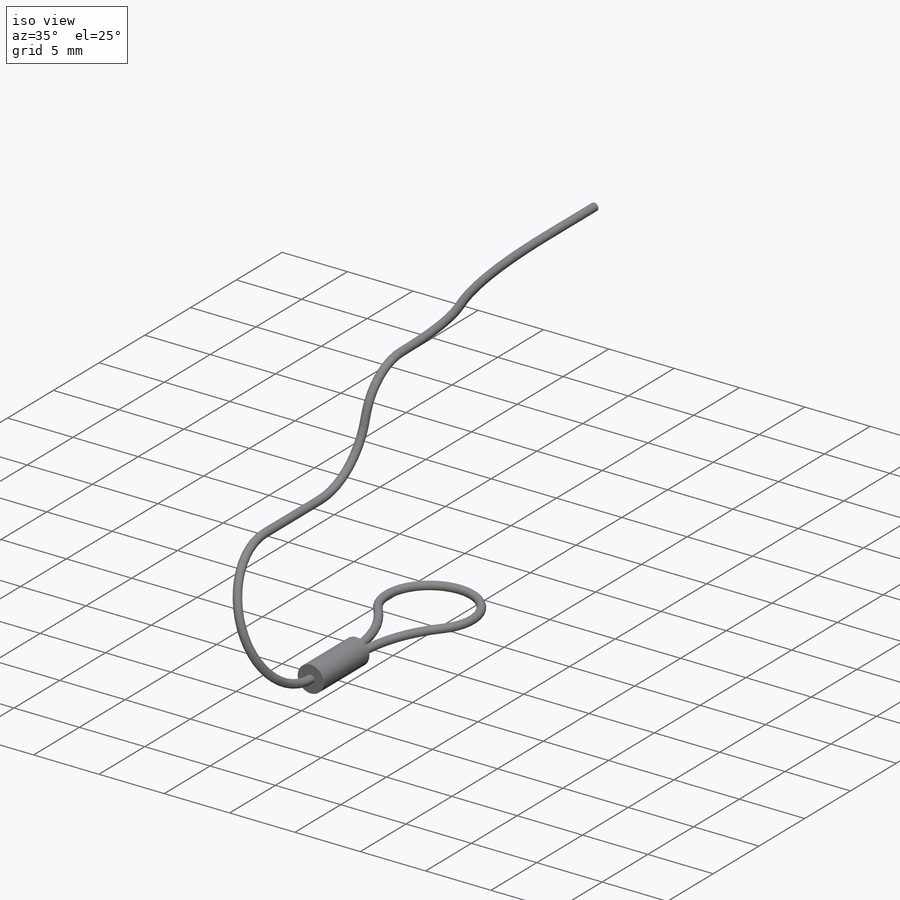
[diagram: iso view]
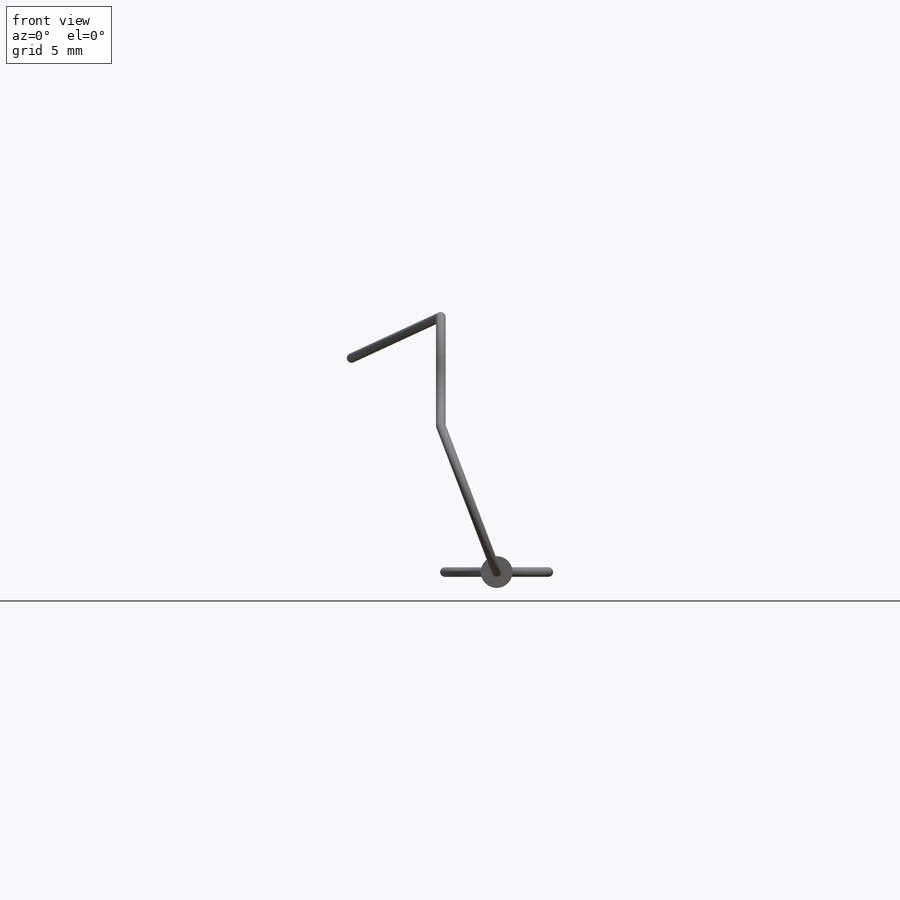
[diagram: front view]
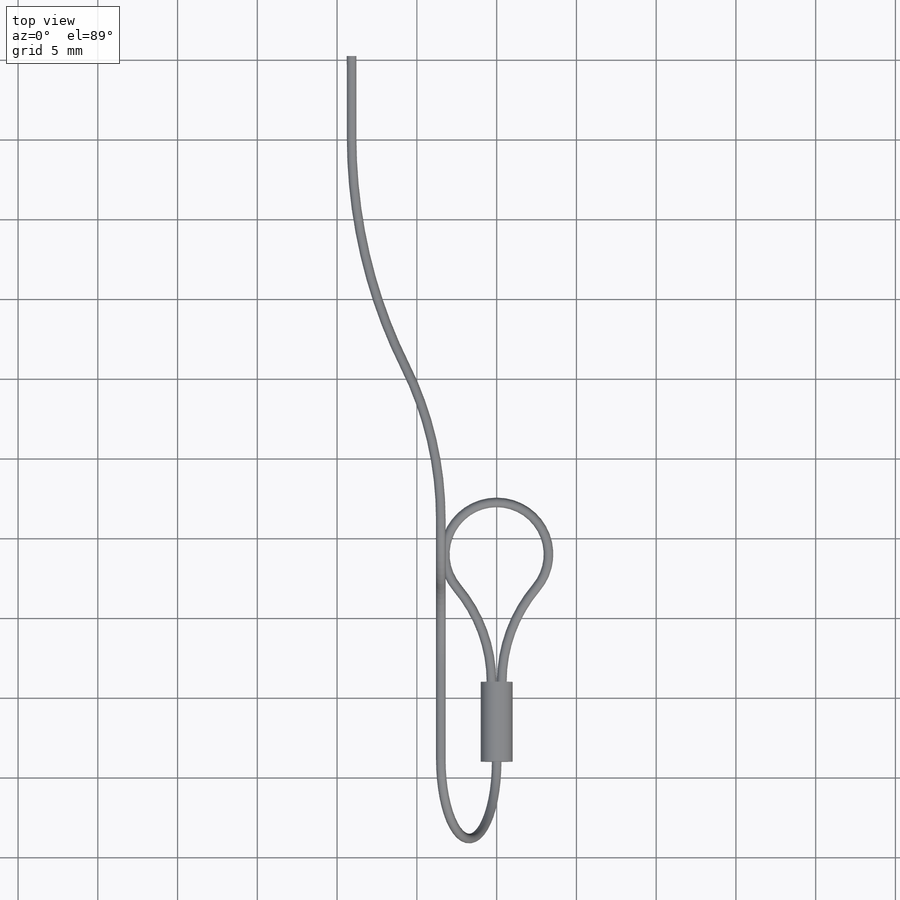
[diagram: top view]
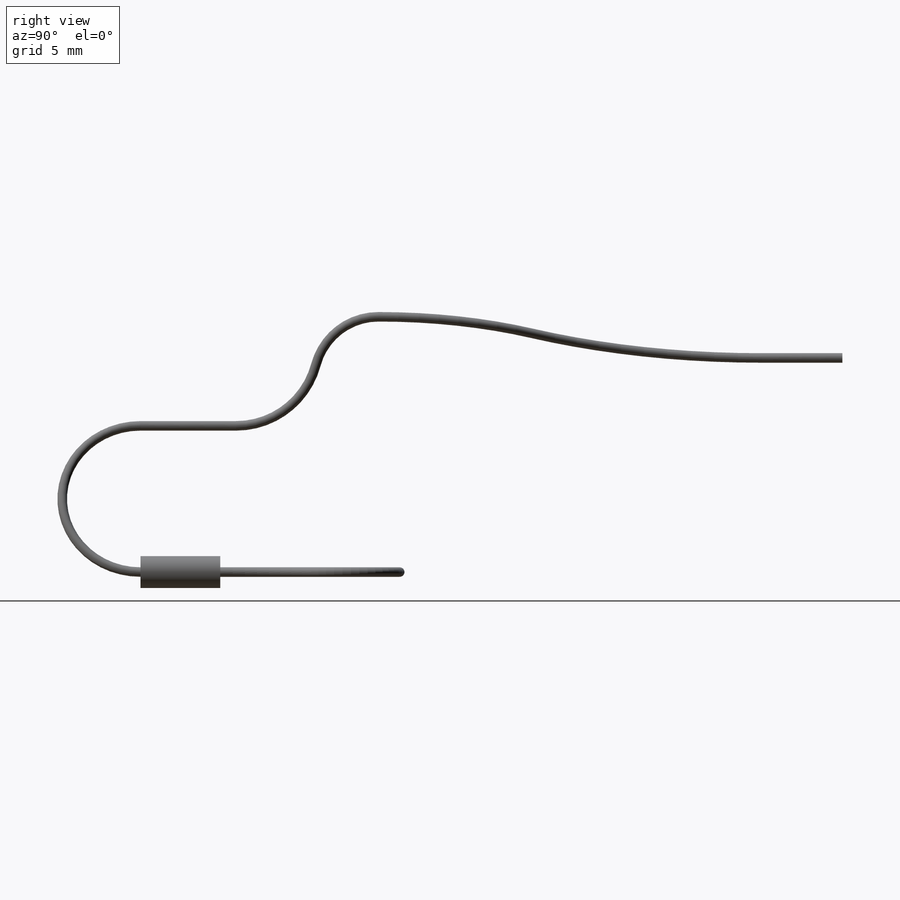
[diagram: right view]
SOLIDWORKS PART (.sldprt)
format: sldprt  version: not decoded by parser v0  size: 518,144 bytes
history: native  units: mm
features: sketch x10, plane x5, sweep x4, material x1, extrude x1 (+15 scaffold rows collapsed)
feature tree (36):
  scaffold x15  (default folders/planes/origin — collapsed)
  material  "Material <not specified>"
  sketch  "Sketch1"  dims[D3=0.6mm D1=6.5mm D2=3.0mm]
  plane  "Plane1"  Offset=13mm
  sketch  "Sketch2"  dims[c1.D2=3.0mm c1.D4=3.25mm c1.D1=0.65mm c1.D3=8.0mm c2.D2=5.0mm c2.D5=9.0mm c2.D6=1.0mm c3.D5=1.5mm c3.D6=12.0mm]
  plane  "Plane2"
  sketch  "Sketch3"  dims[D1=0.6mm]
  sketch  "Sketch4"  dims[D1=2.0mm]
  sweep  "Sweep1"
  extrude  "Extrude1"  Depth=5mm
  plane  "Plane3"
  sketch  "Sketch5"  dims[c1.D1=3.0mm c1.D2=~3.010705mm c2.D2=75.0deg c2.D3=5.0mm c2.D4=2.0mm]
  plane  "Plane4"
  sketch  "Sketch6"
  sketch  "Sketch7"
  sweep  "Sweep2"
  sketch  "Sketch8"  dims[D1=0.0mm]
  sweep  "Sweep3"
  plane  "Plane5"
  sketch  "Sketch9"  dims[D1=20.0mm D2=30.0mm D3=1.0mm D4=30.0mm]
  sketch  "Sketch10"  dims[D1=0.0mm]
  sweep  "Sweep4"
decode coverage: 9 of 15 modeling features carry decoded parameters
note: ~ marks probable driven/reference dimensions
summary: profile_refs inferred from adjacent sketches, not decoded
note: suppression state not decoded; provenance and decode notes live in map.json
